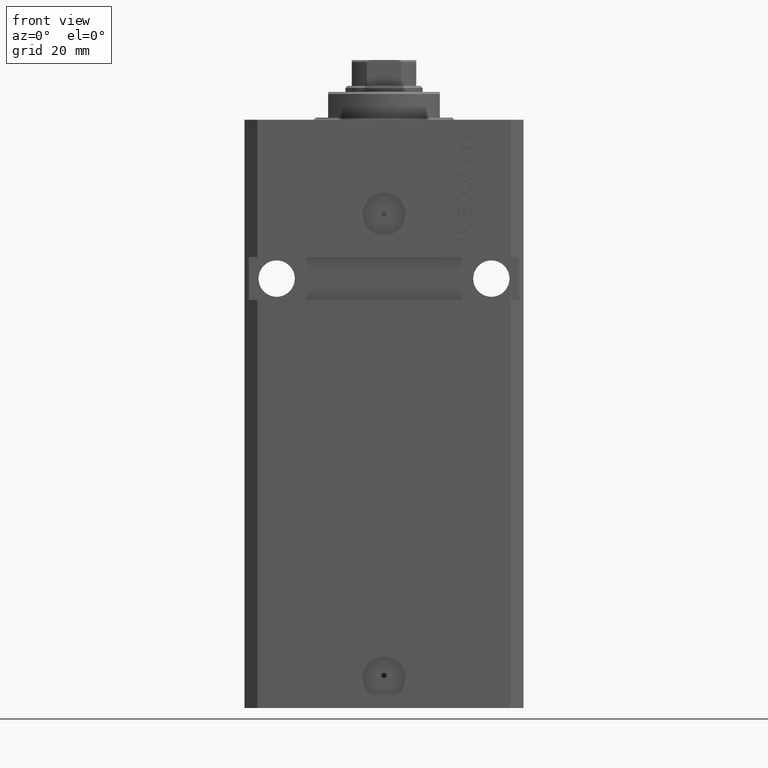
[diagram: clean part render]
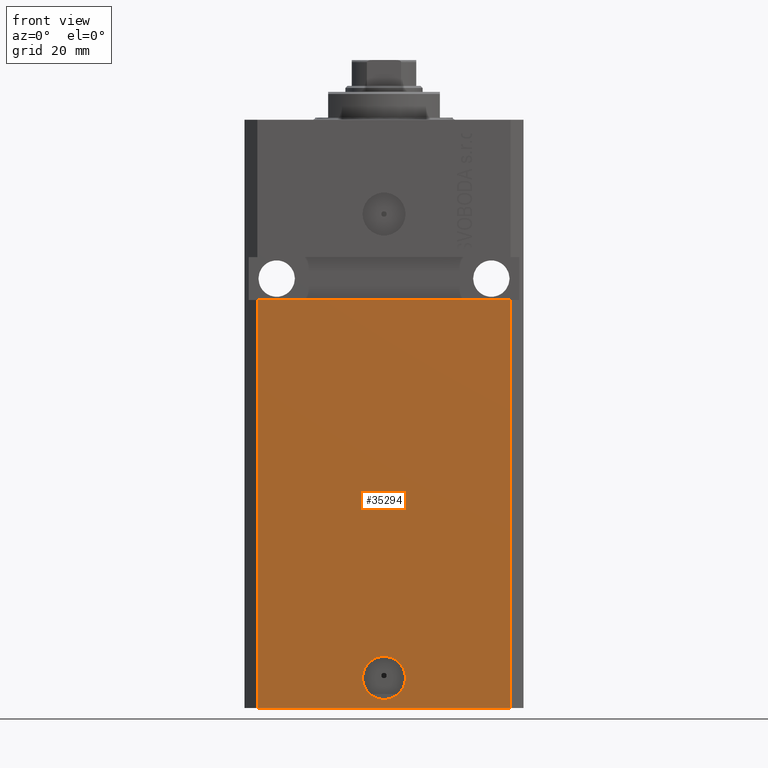
[diagram: same view with one face highlighted and labeled with its STEP entity id]
A machine part, front view. The second image highlights one B-rep face of the part: STEP entity #35294.
In plain terms, the highlighted planar face has unit normal (0, -1, 0).
Its self-contained STEP definition (entity closure, byte-faithful):
#2532 = CIRCLE ( 'NONE', #31988, 5.000000000000006217 ) ;
#2744 = DIRECTION ( 'NONE',  ( 1.176083712526788232E-16, -1.000000000000000000, 0.000000000000000000 ) ) ;
#2879 = EDGE_CURVE ( 'NONE', #26740, #16434, #2532, .T. ) ;
#3070 = EDGE_CURVE ( 'NONE', #19106, #16386, #41584, .T. ) ;
#3504 = CARTESIAN_POINT ( 'NONE',  ( 2.646188353185214061E-15, -22.49999999999949551, -130.0000000000000000 ) ) ;
#4302 = CARTESIAN_POINT ( 'NONE',  ( -29.49999999999650413, -22.49999999999949907, -137.0000000000000000 ) ) ;
#5451 = CARTESIAN_POINT ( 'NONE',  ( -5.000000000000003553, -22.49999999999949551, -130.0000000000000000 ) ) ;
#6038 = FACE_OUTER_BOUND ( 'NONE', #17593, .T. ) ;
#7669 = CARTESIAN_POINT ( 'NONE',  ( -29.49999999999650413, -22.49999999999949907, -137.0000000000000000 ) ) ;
#9806 = DIRECTION ( 'NONE',  ( 1.000000000000000000, 0.000000000000000000, 0.000000000000000000 ) ) ;
#14222 = ORIENTED_EDGE ( 'NONE', *, *, #26581, .F. ) ;
#14287 = ORIENTED_EDGE ( 'NONE', *, *, #22297, .F. ) ;
#15562 = LINE ( 'NONE', #29733, #33413 ) ;
#16386 = VERTEX_POINT ( 'NONE', #36798 ) ;
#16434 = VERTEX_POINT ( 'NONE', #34550 ) ;
#16612 = CARTESIAN_POINT ( 'NONE',  ( -29.49999999999650413, -22.49999999999949907, -41.99999999999999289 ) ) ;
#17353 = DIRECTION ( 'NONE',  ( 1.000000000000000000, 1.176083712526788232E-16, 0.000000000000000000 ) ) ;
#17593 = EDGE_LOOP ( 'NONE', ( #40501, #14222, #44103, #22267 ) ) ;
#19106 = VERTEX_POINT ( 'NONE', #4302 ) ;
#19812 = CIRCLE ( 'NONE', #38439, 5.000000000000006217 ) ;
#19995 = LINE ( 'NONE', #27186, #40235 ) ;
#21223 = DIRECTION ( 'NONE',  ( 0.000000000000000000, 0.000000000000000000, 1.000000000000000000 ) ) ;
#21898 = EDGE_CURVE ( 'NONE', #16386, #22582, #15562, .T. ) ;
#22267 = ORIENTED_EDGE ( 'NONE', *, *, #21898, .T. ) ;
#22297 = EDGE_CURVE ( 'NONE', #16434, #26740, #19812, .T. ) ;
#22582 = VERTEX_POINT ( 'NONE', #35852 ) ;
#24371 = CARTESIAN_POINT ( 'NONE',  ( -29.49999999999650413, -22.49999999999949907, -137.0000000000000000 ) ) ;
#24589 = LINE ( 'NONE', #24371, #43537 ) ;
#25924 = DIRECTION ( 'NONE',  ( 0.000000000000000000, 0.000000000000000000, 1.000000000000000000 ) ) ;
#26298 = DIRECTION ( 'NONE',  ( 1.000000000000000000, 1.176083712526788232E-16, 0.000000000000000000 ) ) ;
#26581 = EDGE_CURVE ( 'NONE', #19106, #41907, #24589, .T. ) ;
#26740 = VERTEX_POINT ( 'NONE', #5451 ) ;
#27186 = CARTESIAN_POINT ( 'NONE',  ( -32.49999999999650413, -22.49999999999949907, -41.99999999999999289 ) ) ;
#29314 = CARTESIAN_POINT ( 'NONE',  ( 2.646188353185214061E-15, -22.49999999999949551, -130.0000000000000000 ) ) ;
#29450 = PLANE ( 'NONE',  #31522 ) ;
#29716 = ORIENTED_EDGE ( 'NONE', *, *, #2879, .F. ) ;
#29723 = EDGE_LOOP ( 'NONE', ( #14287, #29716 ) ) ;
#29733 = CARTESIAN_POINT ( 'NONE',  ( 29.49999999999650413, -22.49999999999949196, -137.0000000000000000 ) ) ;
#30294 = DIRECTION ( 'NONE',  ( 1.176083712526788232E-16, -1.000000000000000000, 0.000000000000000000 ) ) ;
#31522 = AXIS2_PLACEMENT_3D ( 'NONE', #43763, #33469, #26298 ) ;
#31988 = AXIS2_PLACEMENT_3D ( 'NONE', #29314, #2744, #40697 ) ;
#33413 = VECTOR ( 'NONE', #25924, 1000.000000000000000 ) ;
#33469 = DIRECTION ( 'NONE',  ( 1.176083712526788232E-16, -1.000000000000000000, 0.000000000000000000 ) ) ;
#33697 = DIRECTION ( 'NONE',  ( 1.000000000000000000, 1.067522139062765303E-16, 1.067522139062765303E-16 ) ) ;
#34550 = CARTESIAN_POINT ( 'NONE',  ( 5.000000000000008882, -22.49999999999949551, -130.0000000000000000 ) ) ;
#35294 = ADVANCED_FACE ( 'NONE', ( #40388, #6038 ), #29450, .T. ) ;
#35852 = CARTESIAN_POINT ( 'NONE',  ( 29.49999999999650058, -22.49999999999949196, -41.99999999999998579 ) ) ;
#36798 = CARTESIAN_POINT ( 'NONE',  ( 29.49999999999650413, -22.49999999999949196, -137.0000000000000000 ) ) ;
#38387 = VECTOR ( 'NONE', #17353, 1000.000000000000000 ) ;
#38439 = AXIS2_PLACEMENT_3D ( 'NONE', #3504, #30294, #9806 ) ;
#39594 = EDGE_CURVE ( 'NONE', #41907, #22582, #19995, .T. ) ;
#40235 = VECTOR ( 'NONE', #33697, 1000.000000000000000 ) ;
#40388 = FACE_BOUND ( 'NONE', #29723, .T. ) ;
#40501 = ORIENTED_EDGE ( 'NONE', *, *, #39594, .F. ) ;
#40697 = DIRECTION ( 'NONE',  ( 1.000000000000000000, 0.000000000000000000, 0.000000000000000000 ) ) ;
#41584 = LINE ( 'NONE', #7669, #38387 ) ;
#41907 = VERTEX_POINT ( 'NONE', #16612 ) ;
#43537 = VECTOR ( 'NONE', #21223, 1000.000000000000000 ) ;
#43763 = CARTESIAN_POINT ( 'NONE',  ( -29.49999999999650413, -22.49999999999949907, -137.0000000000000000 ) ) ;
#44103 = ORIENTED_EDGE ( 'NONE', *, *, #3070, .T. ) ;